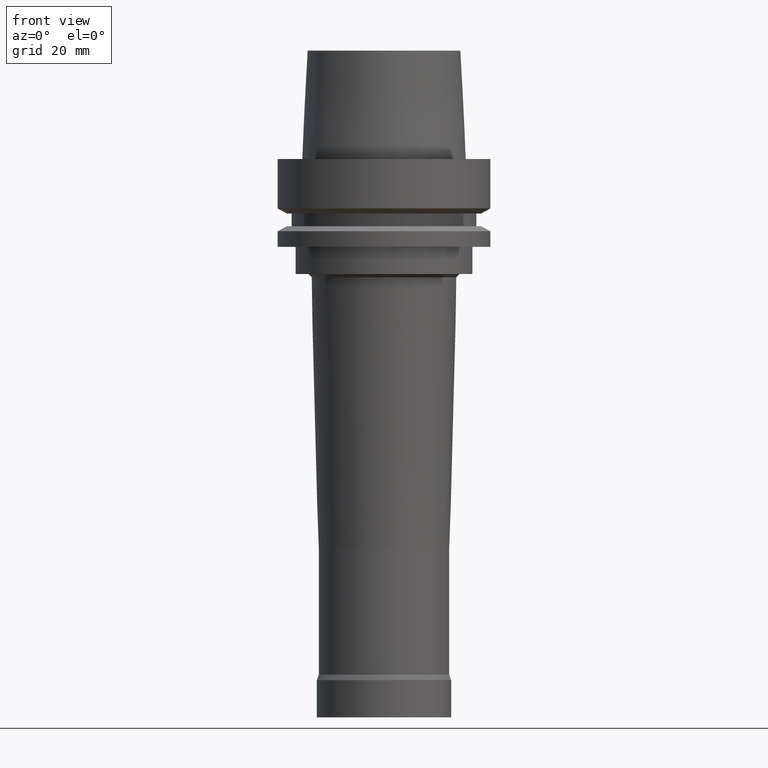
[diagram: clean part render]
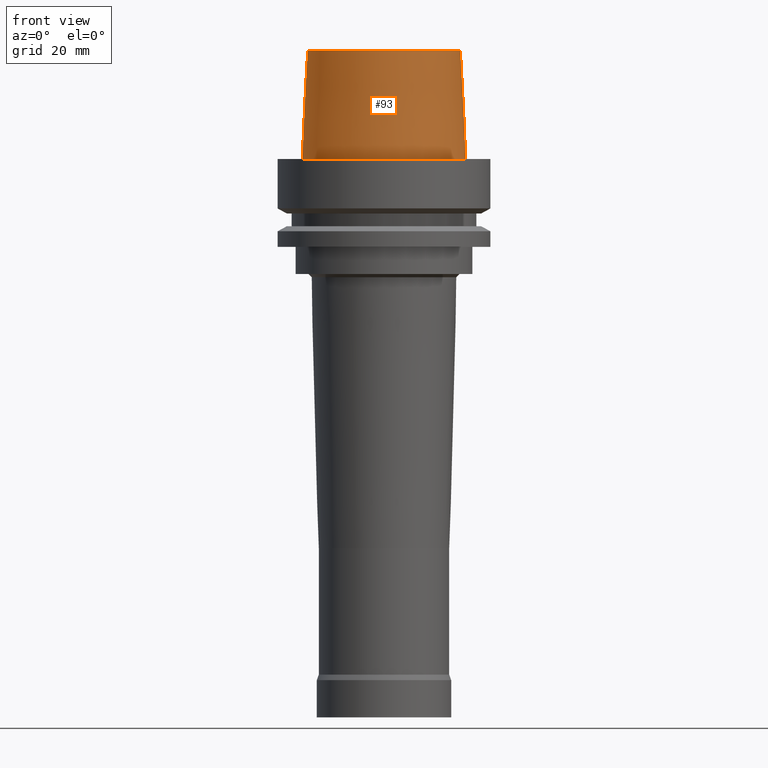
[diagram: same view with one face highlighted and labeled with its STEP entity id]
A machine part, front view. The second image highlights one B-rep face of the part: STEP entity #93.
In plain terms, the highlighted conical surface has half-angle 2.862 deg.
Its self-contained STEP definition (entity closure, byte-faithful):
#93=ADVANCED_FACE('',(#147,#148),#149,.T.);
#147=FACE_BOUND('',#202,.T.);
#148=FACE_BOUND('',#203,.T.);
#149=CONICAL_SURFACE('',#204,23.5149999985447,0.0499583958256321);
#202=EDGE_LOOP('',(#293));
#203=EDGE_LOOP('',(#294));
#204=AXIS2_PLACEMENT_3D('',#295,#296,#297);
#293=ORIENTED_EDGE('',*,*,#299,.F.);
#294=ORIENTED_EDGE('',*,*,#315,.T.);
#295=CARTESIAN_POINT('',(-9.79717439317883E-016,-1.95943487863576E-015,16.0));
#296=DIRECTION('',(6.12323399573676E-017,1.22464679914735E-016,-1.0));
#297=DIRECTION('',(-1.23259516440783E-032,1.0,1.22464679914735E-016));
#299=EDGE_CURVE('',#318,#318,#319,.T.);
#315=EDGE_CURVE('',#350,#350,#351,.T.);
#318=VERTEX_POINT('',#354);
#319=CIRCLE('',#355,24.3150000002079);
#350=VERTEX_POINT('',#386);
#351=CIRCLE('',#387,22.7149999968815);
#354=CARTESIAN_POINT('',(-2.99705514228327E-031,24.3150000002079,2.97772869215225E-015));
#355=AXIS2_PLACEMENT_3D('',#391,#392,#393);
#386=CARTESIAN_POINT('',(-1.95943487863577E-015,22.7149999968815,32.0));
#387=AXIS2_PLACEMENT_3D('',#439,#440,#441);
#391=CARTESIAN_POINT('',(0.0,0.0,0.0));
#392=DIRECTION('',(6.12323399573677E-017,1.22464679914735E-016,-1.0));
#393=DIRECTION('',(-1.23259516440783E-032,1.0,1.22464679914735E-016));
#439=CARTESIAN_POINT('',(-1.95943487863577E-015,-3.91886975727153E-015,32.0));
#440=DIRECTION('',(6.12323399573677E-017,1.22464679914735E-016,-1.0));
#441=DIRECTION('',(-1.23259516440783E-032,1.0,1.22464679914735E-016));